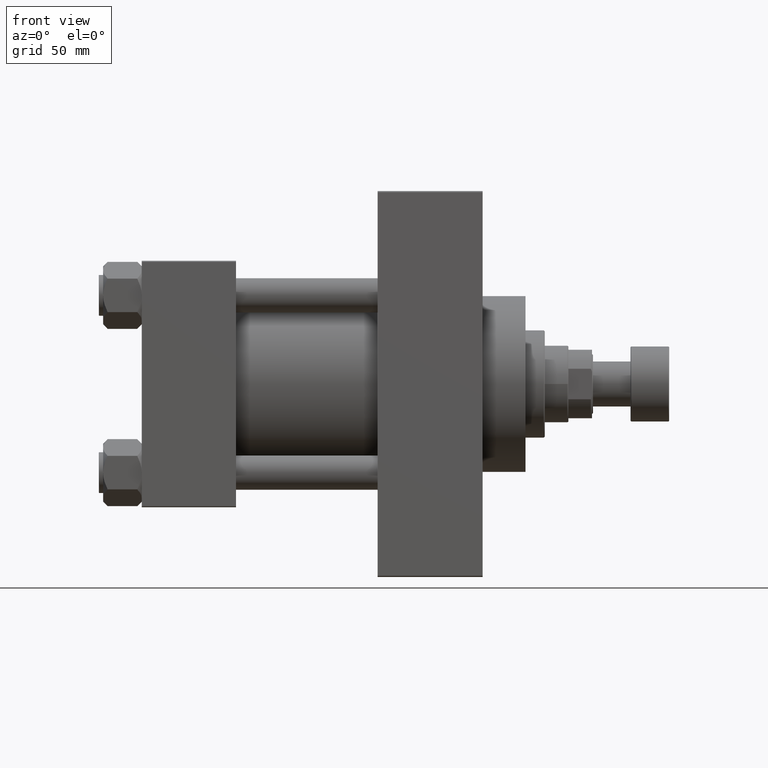
[diagram: clean part render]
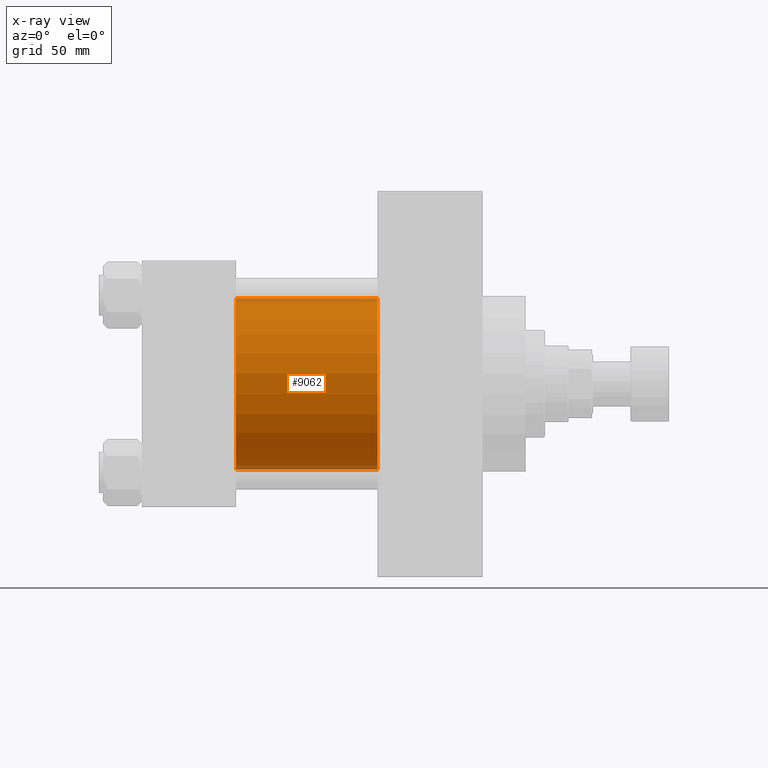
[diagram: x-ray — body ghosted, one internal face saturated and labeled with its STEP entity id]
A machine part, front view, then the same camera in x-ray: the body is ghosted and one INTERNAL B-rep face — a face not visible from any outside direction — is saturated and labeled: STEP entity #9062.
In plain terms, the highlighted cylindrical surface (partial cylindrical patch) has radius 40 mm, axis along (-1, -0, -0).
Its self-contained STEP definition (entity closure, byte-faithful):
#82 = FACE_OUTER_BOUND ( 'NONE', #21786, .T. ) ;
#241 = CARTESIAN_POINT ( 'NONE',  ( 44.00000000000000000, -2.602085213965210642E-15, 40.00000000000000000 ) ) ;
#800 = DIRECTION ( 'NONE',  ( 0.000000000000000000, 0.000000000000000000, 1.000000000000000000 ) ) ;
#1962 = DIRECTION ( 'NONE',  ( 1.000000000000000000, 0.000000000000000000, 0.000000000000000000 ) ) ;
#2419 = AXIS2_PLACEMENT_3D ( 'NONE', #45212, #34256, #7993 ) ;
#3752 = CARTESIAN_POINT ( 'NONE',  ( 110.0000000000000000, 2.296501982624201990E-15, -40.00000000000000000 ) ) ;
#4462 = DIRECTION ( 'NONE',  ( -1.000000000000000000, -0.000000000000000000, -0.000000000000000000 ) ) ;
#4463 = CYLINDRICAL_SURFACE ( 'NONE', #25112, 40.00000000000000000 ) ;
#5012 = VECTOR ( 'NONE', #4462, 1000.000000000000000 ) ;
#7630 = CARTESIAN_POINT ( 'NONE',  ( 110.0000000000000000, -2.602085213965210642E-15, 40.00000000000000000 ) ) ;
#7993 = DIRECTION ( 'NONE',  ( 0.000000000000000000, 0.000000000000000000, -1.000000000000000000 ) ) ;
#9062 = ADVANCED_FACE ( 'NONE', ( #82 ), #4463, .F. ) ;
#12661 = DIRECTION ( 'NONE',  ( 0.000000000000000000, 0.000000000000000000, -1.000000000000000000 ) ) ;
#13115 = AXIS2_PLACEMENT_3D ( 'NONE', #16317, #1962, #12661 ) ;
#14588 = CARTESIAN_POINT ( 'NONE',  ( 110.0000000000000000, 2.296501982624201990E-15, -40.00000000000000000 ) ) ;
#16317 = CARTESIAN_POINT ( 'NONE',  ( 44.00000000000000000, -2.602085213965210642E-15, 0.000000000000000000 ) ) ;
#19292 = DIRECTION ( 'NONE',  ( -1.000000000000000000, -0.000000000000000000, -0.000000000000000000 ) ) ;
#19603 = ORIENTED_EDGE ( 'NONE', *, *, #41813, .T. ) ;
#21786 = EDGE_LOOP ( 'NONE', ( #31747, #19603, #22610, #43957 ) ) ;
#22610 = ORIENTED_EDGE ( 'NONE', *, *, #37971, .F. ) ;
#24726 = EDGE_CURVE ( 'NONE', #34585, #36297, #25858, .T. ) ;
#25112 = AXIS2_PLACEMENT_3D ( 'NONE', #29761, #19292, #800 ) ;
#25858 = LINE ( 'NONE', #7630, #5012 ) ;
#29545 = VECTOR ( 'NONE', #47803, 1000.000000000000000 ) ;
#29761 = CARTESIAN_POINT ( 'NONE',  ( 110.0000000000000000, -2.602085213965210642E-15, 0.000000000000000000 ) ) ;
#31747 = ORIENTED_EDGE ( 'NONE', *, *, #43839, .T. ) ;
#33185 = LINE ( 'NONE', #3752, #29545 ) ;
#33299 = VERTEX_POINT ( 'NONE', #42174 ) ;
#34256 = DIRECTION ( 'NONE',  ( 1.000000000000000000, 0.000000000000000000, 0.000000000000000000 ) ) ;
#34585 = VERTEX_POINT ( 'NONE', #45174 ) ;
#36297 = VERTEX_POINT ( 'NONE', #241 ) ;
#37971 = EDGE_CURVE ( 'NONE', #36297, #33299, #39556, .T. ) ;
#39556 = CIRCLE ( 'NONE', #13115, 40.00000000000000000 ) ;
#41813 = EDGE_CURVE ( 'NONE', #46314, #33299, #33185, .T. ) ;
#42174 = CARTESIAN_POINT ( 'NONE',  ( 44.00000000000000000, 2.296501982624201990E-15, -40.00000000000000000 ) ) ;
#42843 = CIRCLE ( 'NONE', #2419, 40.00000000000000000 ) ;
#43839 = EDGE_CURVE ( 'NONE', #34585, #46314, #42843, .T. ) ;
#43957 = ORIENTED_EDGE ( 'NONE', *, *, #24726, .F. ) ;
#45174 = CARTESIAN_POINT ( 'NONE',  ( 110.0000000000000000, -2.602085213965210642E-15, 40.00000000000000000 ) ) ;
#45212 = CARTESIAN_POINT ( 'NONE',  ( 110.0000000000000000, -2.602085213965210642E-15, 0.000000000000000000 ) ) ;
#46314 = VERTEX_POINT ( 'NONE', #14588 ) ;
#47803 = DIRECTION ( 'NONE',  ( -1.000000000000000000, -0.000000000000000000, -0.000000000000000000 ) ) ;